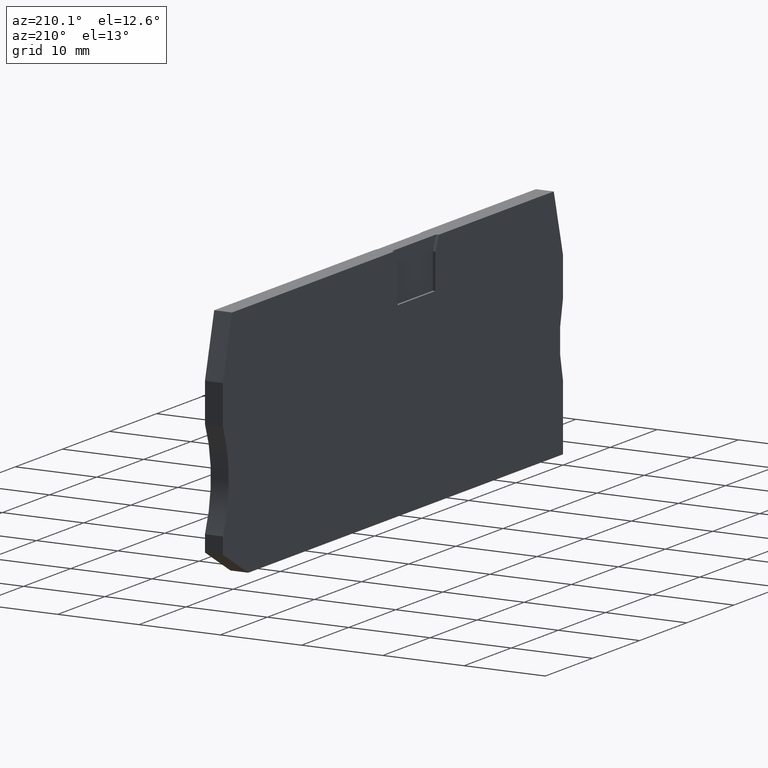
[diagram: clean part render]
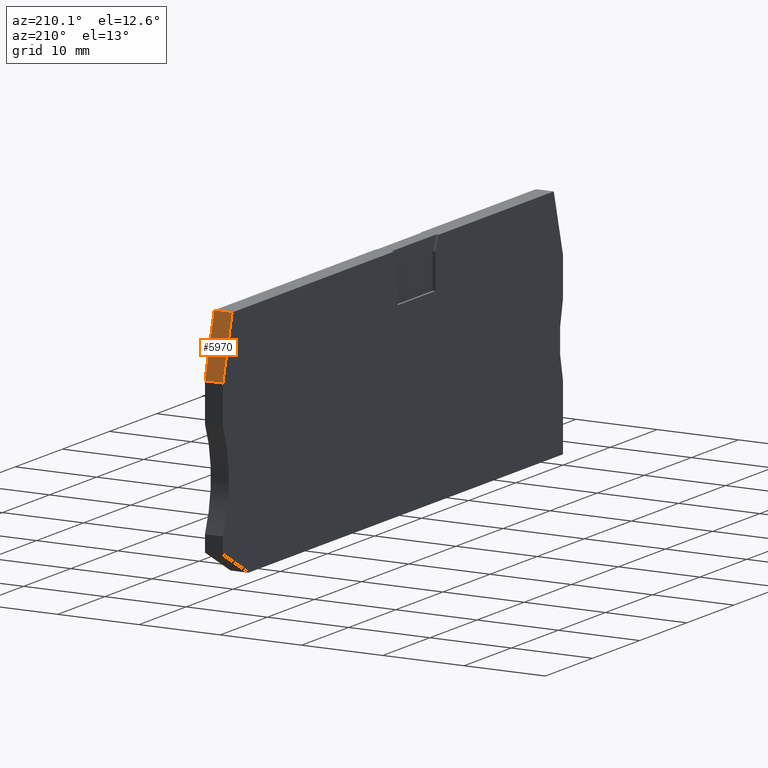
[diagram: same view with one face highlighted and labeled with its STEP entity id]
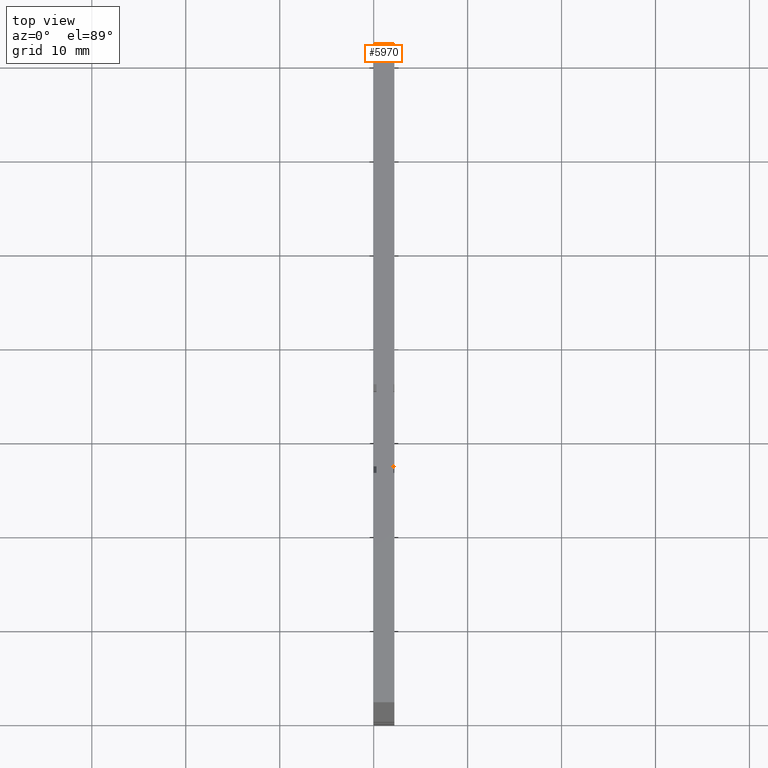
[diagram: same view with one face highlighted and labeled with its STEP entity id]
A machine part, auxiliary view. The second image highlights one B-rep face of the part: STEP entity #5970.
A second angle (top view) of the same face is appended — the face is thin or edge-on in the first view.
In plain terms, the highlighted planar face has unit normal (-0, 0.9659, 0.2588).
Its self-contained STEP definition (entity closure, byte-faithful):
#590=CARTESIAN_POINT('',(38.0321672216756,-16.4655444566078,55.37));
#600=VERTEX_POINT('',#590);
#1770=CARTESIAN_POINT('',(36.0719729923292,-9.15000000000164,55.37));
#1780=VERTEX_POINT('',#1770);
#1810=CARTESIAN_POINT('',(36.8704751894023,-12.1300507694265,55.37));
#1820=DIRECTION('',(-0.258819045103111,0.96592582628891,0.));
#1830=VECTOR('',#1820,1.);
#1840=LINE('',#1810,#1830);
#1850=EDGE_CURVE('',#600,#1780,#1840,.T.);
#5670=CARTESIAN_POINT('',(38.01513013482,-16.4019611828501,55.37));
#5680=DIRECTION('',(0.96592582628891,0.258819045103111,0.));
#5690=DIRECTION('',(0.258819045103111,-0.96592582628891,0.));
#5700=AXIS2_PLACEMENT_3D('',#5670,#5680,#5690);
#5710=PLANE('',#5700);
#5720=CARTESIAN_POINT('',(36.0719729923292,-9.15000000000164,53.17));
#5730=DIRECTION('',(0.,0.,1.));
#5740=VECTOR('',#5730,1.);
#5750=LINE('',#5720,#5740);
#5760=CARTESIAN_POINT('',(36.0719729923292,-9.15000000000164,53.17));
#5770=VERTEX_POINT('',#5760);
#5780=EDGE_CURVE('',#5770,#1780,#5750,.T.);
#5790=ORIENTED_EDGE('',*,*,#5780,.T.);
#5800=CARTESIAN_POINT('',(36.8704751894023,-12.1300507694265,53.17));
#5810=DIRECTION('',(0.258819045103111,-0.96592582628891,0.));
#5820=VECTOR('',#5810,1.);
#5830=LINE('',#5800,#5820);
#5840=CARTESIAN_POINT('',(38.0321672216756,-16.4655444566078,53.17));
#5850=VERTEX_POINT('',#5840);
#5860=EDGE_CURVE('',#5770,#5850,#5830,.T.);
#5870=ORIENTED_EDGE('',*,*,#5860,.F.);
#5880=CARTESIAN_POINT('',(38.0321672216756,-16.4655444566078,53.17));
#5890=DIRECTION('',(0.,0.,1.));
#5900=VECTOR('',#5890,1.);
#5910=LINE('',#5880,#5900);
#5920=EDGE_CURVE('',#5850,#600,#5910,.T.);
#5930=ORIENTED_EDGE('',*,*,#5920,.F.);
#5940=ORIENTED_EDGE('',*,*,#1850,.F.);
#5950=EDGE_LOOP('',(#5940,#5930,#5870,#5790));
#5960=FACE_OUTER_BOUND('',#5950,.T.);
#5970=ADVANCED_FACE('',(#5960),#5710,.T.);